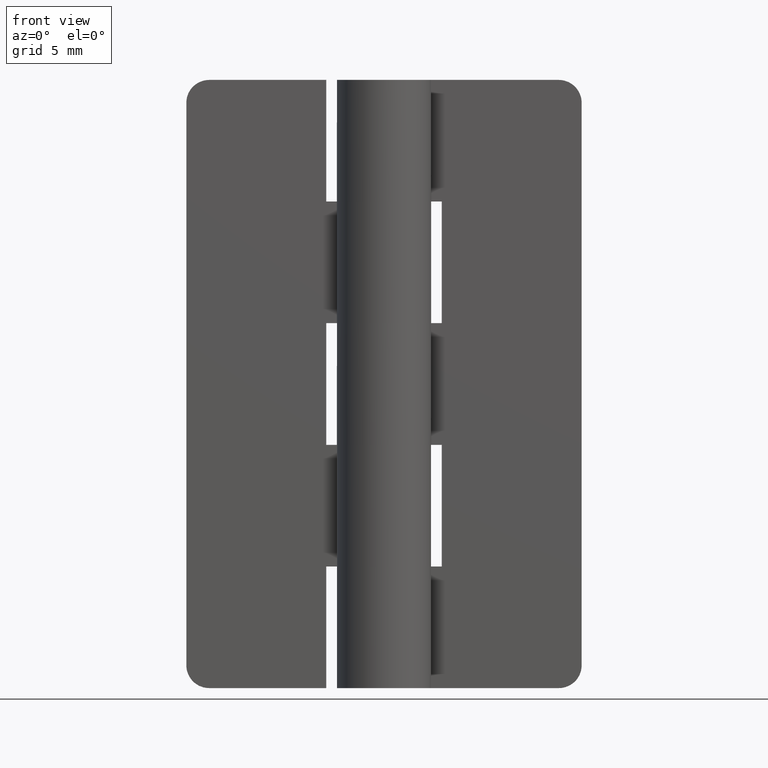
[diagram: clean part render]
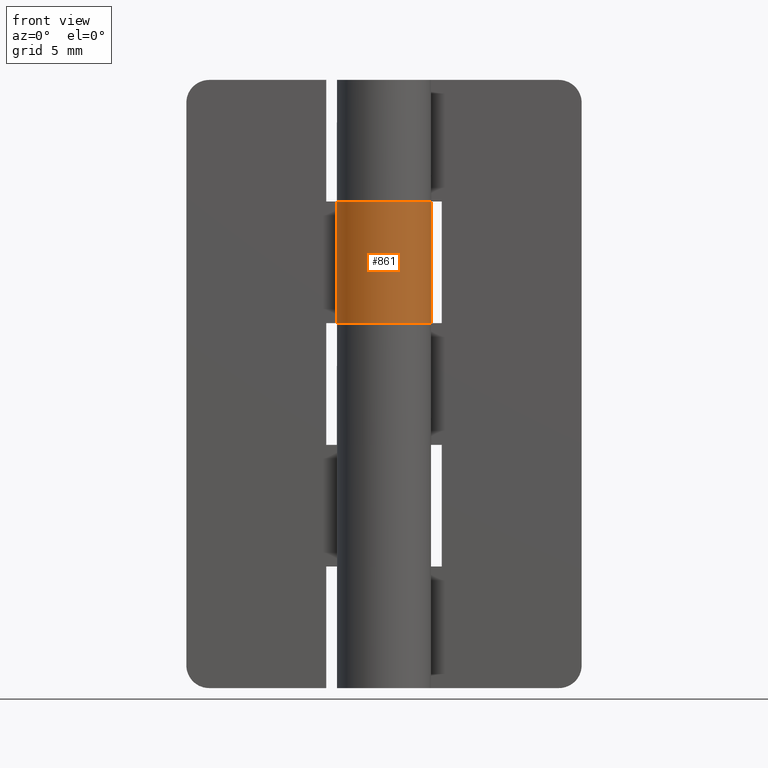
[diagram: same view with one face highlighted and labeled with its STEP entity id]
A machine part, front view. The second image highlights one B-rep face of the part: STEP entity #861.
In plain terms, the highlighted face is a freeform B-spline surface patch.
Its self-contained STEP definition (entity closure, byte-faithful):
#171=CARTESIAN_POINT('',(0.0,3.099998000000000,24.0));
#172=VERTEX_POINT('',#171);
#173=CARTESIAN_POINT('',(-2.739981751764050,1.450000000000000,24.0));
#174=VERTEX_POINT('',#173);
#175=CARTESIAN_POINT('',(0.0,3.099998000000000,24.0));
#176=CARTESIAN_POINT('',(2.356097610603767,3.099996737895512,24.0));
#177=CARTESIAN_POINT('',(2.986848545660751,0.829898189834369,24.0));
#178=CARTESIAN_POINT('',(3.617599480717734,-1.440200358226772,24.0));
#179=CARTESIAN_POINT('',(1.599218559171949,-2.655655344977900,24.0));
#180=CARTESIAN_POINT('',(-0.419162362373838,-3.871110331729028,24.0));
#181=CARTESIAN_POINT('',(-2.130594885355307,-2.251790737784723,24.0));
#182=CARTESIAN_POINT('',(-3.842027408336779,-0.632471143840418,24.0));
#183=CARTESIAN_POINT('',(-2.739981751764050,1.450000000000000,24.0));
#191=(BOUNDED_CURVE()B_SPLINE_CURVE(2,(#175,#176,#177,#178,#179,#180,#181,#182,#183),.UNSPECIFIED.,.F.,.U.)B_SPLINE_CURVE_WITH_KNOTS((3,2,2,2,3),(0.0,0.250000000000000,0.500000000000000,0.750000000000000,1.0),.UNSPECIFIED.)CURVE()GEOMETRIC_REPRESENTATION_ITEM()RATIONAL_B_SPLINE_CURVE((1.0,0.796150117301085,1.0,0.796150117301085,1.0,0.796150117301085,1.0,0.796150117301085,1.0))REPRESENTATION_ITEM(''));
#192=EDGE_CURVE('',#172,#174,#191,.T.);
#236=CARTESIAN_POINT('',(-0.003521362805221,3.099998000000000,24.0));
#237=VERTEX_POINT('',#236);
#243=CARTESIAN_POINT('',(-0.003521362805221,3.099998000000000,24.0));
#244=CARTESIAN_POINT('',(0.0,3.099998000000000,24.0));
#245=QUASI_UNIFORM_CURVE('',1,(#243,#244),.UNSPECIFIED.,.F.,.U.);
#246=EDGE_CURVE('',#237,#172,#245,.T.);
#474=CARTESIAN_POINT('',(-0.003521362805221,3.099998000000050,32.0));
#475=VERTEX_POINT('',#474);
#476=CARTESIAN_POINT('',(0.0,3.099998000000050,32.0));
#477=VERTEX_POINT('',#476);
#478=CARTESIAN_POINT('',(-0.003521362805221,3.099998000000050,32.0));
#479=CARTESIAN_POINT('',(0.0,3.099998000000050,32.0));
#480=QUASI_UNIFORM_CURVE('',1,(#478,#479),.UNSPECIFIED.,.F.,.U.);
#481=EDGE_CURVE('',#475,#477,#480,.T.);
#525=CARTESIAN_POINT('',(-2.739981751764050,1.450000000000000,32.0));
#526=VERTEX_POINT('',#525);
#532=CARTESIAN_POINT('',(0.0,3.099998000000050,32.0));
#533=CARTESIAN_POINT('',(2.356097610603767,3.099996737895593,32.0));
#534=CARTESIAN_POINT('',(2.986848545660751,0.829898189834440,32.0));
#535=CARTESIAN_POINT('',(3.617599480717734,-1.440200358226711,32.0));
#536=CARTESIAN_POINT('',(1.599218559171949,-2.655655344977875,32.0));
#537=CARTESIAN_POINT('',(-0.419162362373838,-3.871110331729040,32.0));
#538=CARTESIAN_POINT('',(-2.130594885355307,-2.251790737784745,32.0));
#539=CARTESIAN_POINT('',(-3.842027408336779,-0.632471143840449,32.0));
#540=CARTESIAN_POINT('',(-2.739981751764050,1.450000000000000,32.0));
#548=(BOUNDED_CURVE()B_SPLINE_CURVE(2,(#532,#533,#534,#535,#536,#537,#538,#539,#540),.UNSPECIFIED.,.F.,.U.)B_SPLINE_CURVE_WITH_KNOTS((3,2,2,2,3),(0.0,0.250000000000000,0.500000000000000,0.750000000000000,1.0),.UNSPECIFIED.)CURVE()GEOMETRIC_REPRESENTATION_ITEM()RATIONAL_B_SPLINE_CURVE((1.0,0.796150117301085,1.0,0.796150117301085,1.0,0.796150117301085,1.0,0.796150117301085,1.0))REPRESENTATION_ITEM(''));
#549=EDGE_CURVE('',#477,#526,#548,.T.);
#711=CARTESIAN_POINT('',(-2.739981751764050,1.450000000000000,32.0));
#712=CARTESIAN_POINT('',(-2.739981751764050,1.450000000000000,24.0));
#713=QUASI_UNIFORM_CURVE('',1,(#711,#712),.UNSPECIFIED.,.F.,.U.);
#714=EDGE_CURVE('',#526,#174,#713,.T.);
#772=CARTESIAN_POINT('',(-0.003521362805221,3.099998000000050,32.0));
#773=CARTESIAN_POINT('',(-0.003521362805221,3.099998000000000,24.0));
#774=QUASI_UNIFORM_CURVE('',1,(#772,#773),.UNSPECIFIED.,.F.,.U.);
#775=EDGE_CURVE('',#475,#237,#774,.T.);
#831=CARTESIAN_POINT('',(-2.699834918711258,1.523447213298631,32.200000000000003));
#832=CARTESIAN_POINT('',(-2.699834918711258,1.523447213298631,23.795000000000002));
#833=CARTESIAN_POINT('',(-4.558915972059315,-1.771193979864723,32.200000000000003));
#834=CARTESIAN_POINT('',(-4.558915972059315,-1.771193979864723,23.794999999999998));
#835=CARTESIAN_POINT('',(-0.963178343373892,-2.946572157415378,32.200000000000003));
#836=CARTESIAN_POINT('',(-0.963178343373892,-2.946572157415378,23.795000000000002));
#837=CARTESIAN_POINT('',(2.632559285311531,-4.121950334966034,32.200000000000003));
#838=CARTESIAN_POINT('',(2.632559285311531,-4.121950334966034,23.794999999999998));
#839=CARTESIAN_POINT('',(3.078396003541830,-0.365346473060417,32.200000000000003));
#840=CARTESIAN_POINT('',(3.078396003541830,-0.365346473060417,23.795000000000002));
#841=CARTESIAN_POINT('',(3.524232721772131,3.391257388845201,32.200000000000003));
#842=CARTESIAN_POINT('',(3.524232721772131,3.391257388845201,23.794999999999998));
#843=CARTESIAN_POINT('',(-0.246733547457017,3.090165457796601,32.200000000000003));
#844=CARTESIAN_POINT('',(-0.246733547457017,3.090165457796601,23.795000000000002));
#852=(BOUNDED_SURFACE()B_SPLINE_SURFACE(1,2,((#831,#833,#835,#837,#839,#841,#843),(#832,#834,#836,#838,#840,#842,#844)),.UNSPECIFIED.,.F.,.F.,.U.)B_SPLINE_SURFACE_WITH_KNOTS((2,2),(3,2,2,3),(0.0,8.405000000000008),(0.0,5.870281529289077,11.740563058578150,17.610844587867231),.UNSPECIFIED.)GEOMETRIC_REPRESENTATION_ITEM()RATIONAL_B_SPLINE_SURFACE(((1.0,0.633830967398710,1.0,0.633830967398710,1.0,0.633830967398710,1.0),(1.0,0.633830967398710,1.0,0.633830967398710,1.0,0.633830967398710,1.0)))REPRESENTATION_ITEM('')SURFACE());
#853=ORIENTED_EDGE('',*,*,#246,.F.);
#854=ORIENTED_EDGE('',*,*,#775,.F.);
#855=ORIENTED_EDGE('',*,*,#481,.T.);
#856=ORIENTED_EDGE('',*,*,#549,.T.);
#857=ORIENTED_EDGE('',*,*,#714,.T.);
#858=ORIENTED_EDGE('',*,*,#192,.F.);
#859=EDGE_LOOP('',(#853,#854,#855,#856,#857,#858));
#860=FACE_OUTER_BOUND('',#859,.T.);
#861=ADVANCED_FACE('',(#860),#852,.T.);